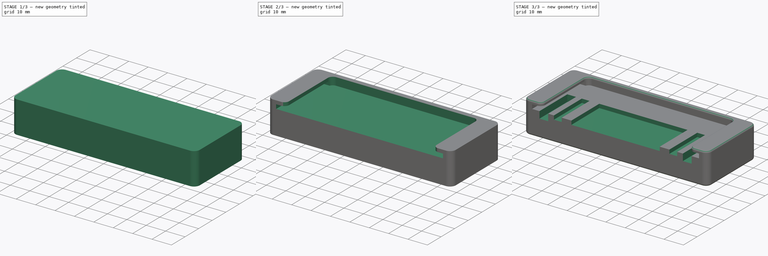
[diagram: build sequence overview — one tinted view per stage of 3, left to right]
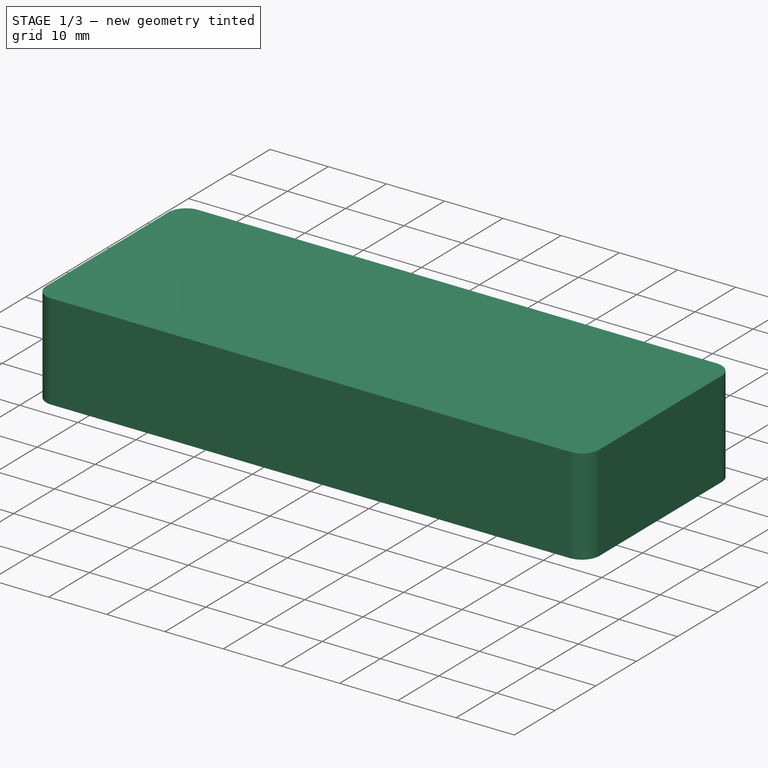
[diagram: stage 1 of 3 — iso view after this stage's code; geometry added in this stage tinted green]
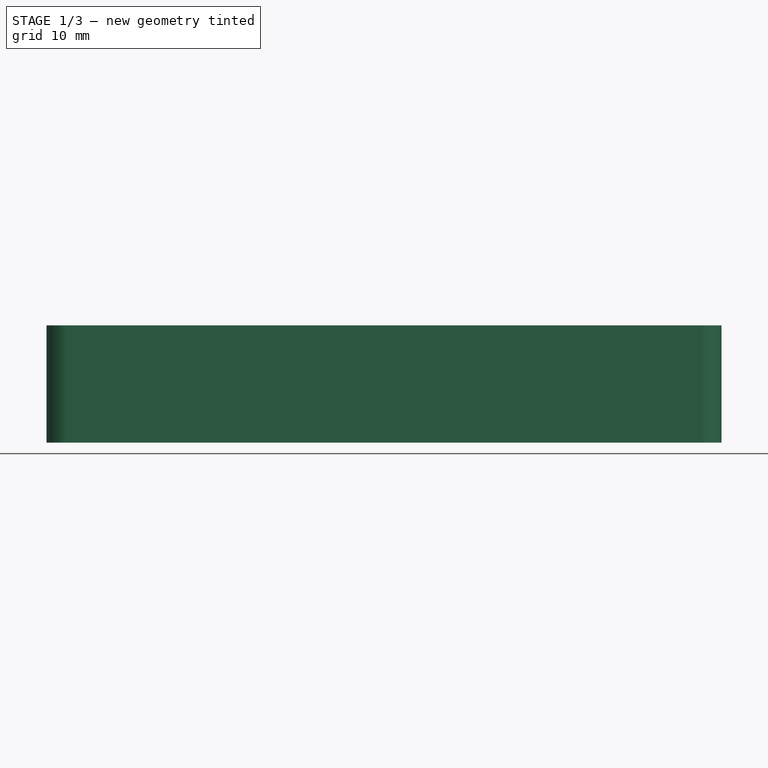
[diagram: stage 1 of 3 — front view after this stage's code; geometry added in this stage tinted green]
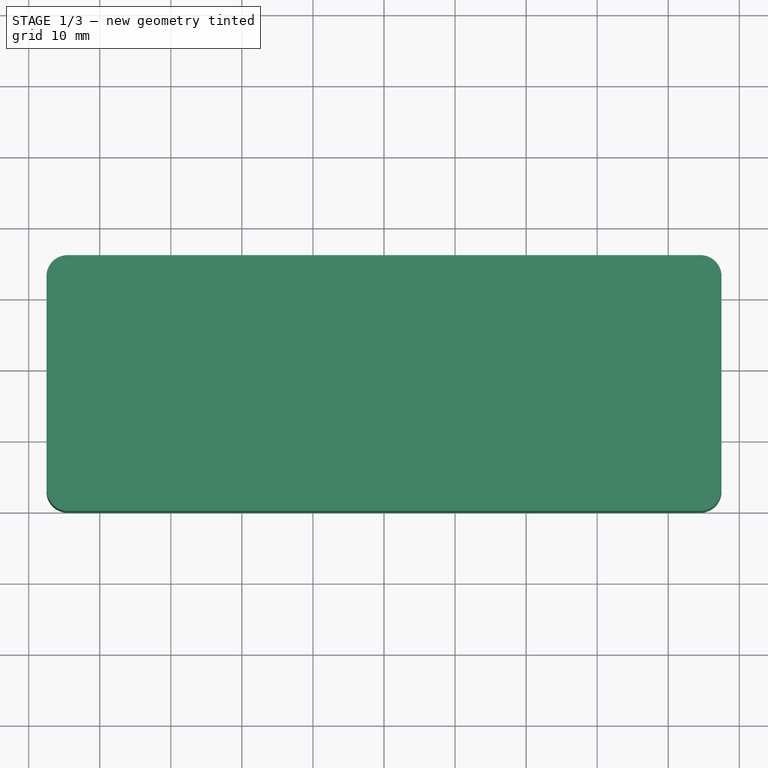
[diagram: stage 1 of 3 — top view after this stage's code; geometry added in this stage tinted green]
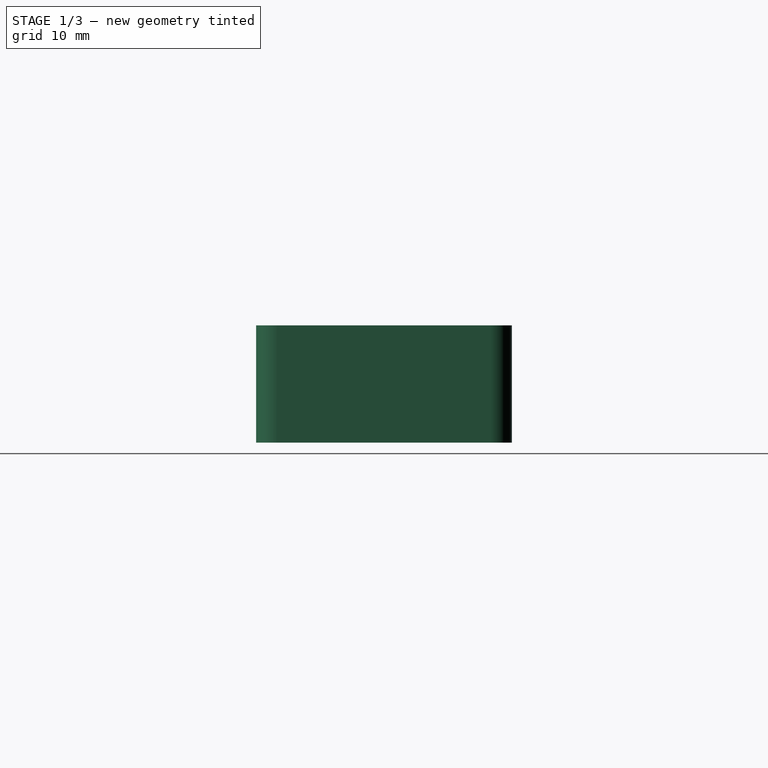
[diagram: stage 1 of 3 — right view after this stage's code; geometry added in this stage tinted green]
FCSTD DOCUMENT  (FreeCAD 1.0R38806 (Git))
Label: VertiCart Base Support
License: Creative Commons Attribution 4.0
LicenseURL: https://creativecommons.org/licenses/by/4.0/
objects: Sketcher::SketchObject×5, PartDesign::Pocket×4, PartDesign::Pad×1, PartDesign::Fillet×1, PartDesign::Body×1
note: 29 computed .brp shape members not serialized (recipe doc carries the construction recipe); baked Part::Feature solids carry a one-line shape summary decoded from their .brp

FEATURE [Sketcher::SketchObject] Sketch
  ArcFitTolerance = 1e-06
  AttachmentSupport = -> [XY_Plane]
  FullyConstrained = true
  MakeInternals = false
  MapMode = 5
  sketch-geometry (10):
    g0: LineSegment StartX=-47.5 StartY=33 StartZ=0 EndX=-47.5 EndY=3 EndZ=0
    g1: LineSegment StartX=-44.5 StartY=0 StartZ=0 EndX=44.5 EndY=0 EndZ=0
    g2: LineSegment StartX=47.5 StartY=3 StartZ=0 EndX=47.5 EndY=33 EndZ=0
    g3: LineSegment StartX=44.5 StartY=36 StartZ=0 EndX=-44.5 EndY=36 EndZ=0
    g4: ArcOfCircle CenterX=-44.5 CenterY=33 CenterZ=0 NormalX=0 NormalY=0 NormalZ=1 AngleXU=0 Radius=3 StartAngle=1.5708 EndAngle=3.14159
    g5: ArcOfCircle CenterX=-44.5 CenterY=3 CenterZ=0 NormalX=0 NormalY=0 NormalZ=1 AngleXU=0 Radius=3 StartAngle=3.14159 EndAngle=4.71239
    g6: ArcOfCircle CenterX=44.5 CenterY=3 CenterZ=0 NormalX=0 NormalY=0 NormalZ=1 AngleXU=0 Radius=3 StartAngle=4.71239 EndAngle=6.28319
    g7: ArcOfCircle CenterX=44.5 CenterY=33 CenterZ=0 NormalX=0 NormalY=0 NormalZ=1 AngleXU=0 Radius=3 StartAngle=-2.7e-15 EndAngle=1.5708
    g8: GeomPoint [constr] X=-47.5 Y=36 Z=0
    g9: GeomPoint [constr] X=47.5 Y=0 Z=0
  constraints (23):
    c: Tangent(g0,g4) = -1.5708
    c: Tangent(g0,g5) = -1.5708
    c: Tangent(g1,g5) = -1.5708
    c: Tangent(g1,g6) = -1.5708
    c: Tangent(g2,g6) = -1.5708
    c: Tangent(g2,g7) = -1.5708
    c: Tangent(g3,g7) = -1.5708
    c: Tangent(g3,g4) = -1.5708
    c: Vertical(g0)
    c: Vertical(g2)
    c: Horizontal(g1)
    c: Horizontal(g3)
    c: Equal(g4,g5)
    c: Equal(g5,g6)
    c: Equal(g6,g7)
    c: PointOnObject(g8,g0)
    c: PointOnObject(g8,g3)
    c: PointOnObject(g9,g1)
    c: PointOnObject(g9,g2)
    c: Distance(g0,g2) = 95
    c: Distance(g1,g3) = 36
    c: Radius(g5) = 3
    c: Symmetric(g1,g1,g-1)
FEATURE [PartDesign::Pad] Pad
  Direction = (0,0,1)
  Length = 16.5
  Length2 = 10
  Profile = -> Sketch
  ReferenceAxis = -> Sketch [N_Axis]
  Suppressed = false
  Type = 0
FEATURE [Sketcher::SketchObject] Sketch001
  ArcFitTolerance = 1e-06
  AttachmentSupport = -> [Pad]
  ExternalGeometry = -> [Pad]
  FullyConstrained = true
  MakeInternals = false
  MapMode = 5
  Placement = pos=(0,0,0) rot=(1,0,0;3.14159rad)
  sketch-geometry (2):
    g0: Circle CenterX=-39.5 CenterY=-28 CenterZ=0 NormalX=0 NormalY=0 NormalZ=1 AngleXU=0 Radius=6.5
    g1: Circle CenterX=39.5 CenterY=-28 CenterZ=0 NormalX=0 NormalY=0 NormalZ=1 AngleXU=0 Radius=6.5
  constraints (5):
    c: Diameter(g0) = 13
    c: Equal(g1,g0)
    c: Symmetric(g0,g1,g-2)
    c: DistanceX(g-4,g0) = 8
    c: DistanceY(g-3,g0) = 8
FEATURE [PartDesign::Pocket] Pocket
  BaseFeature = -> Pad
  Direction = (0,0,1)
  Length = 1.5
  Length2 = 5
  Profile = -> Sketch001
  ReferenceAxis = -> Sketch001 [N_Axis]
  Suppressed = false
  Type = 0
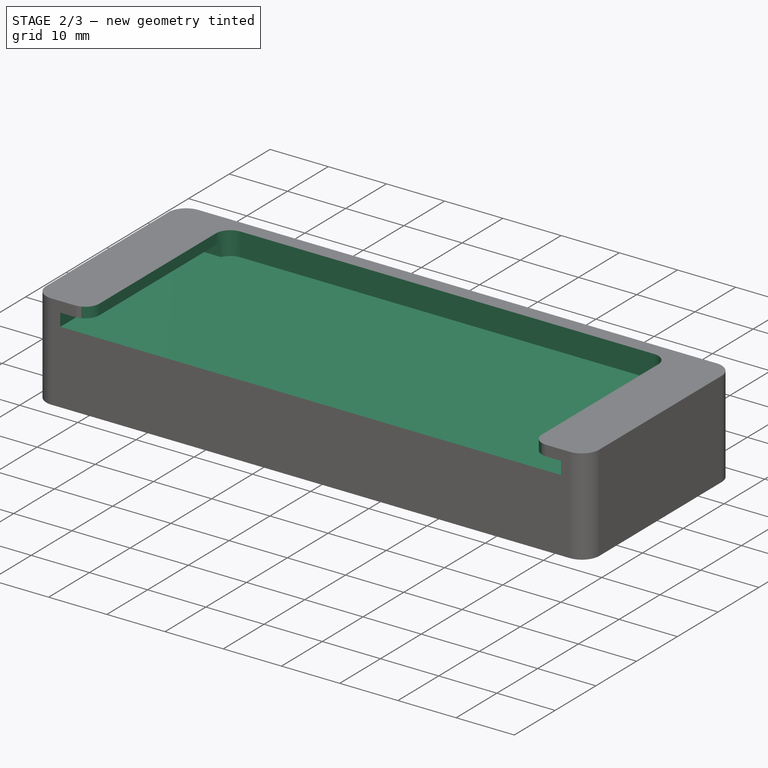
[diagram: stage 2 of 3 — iso view after this stage's code; geometry added in this stage tinted green]
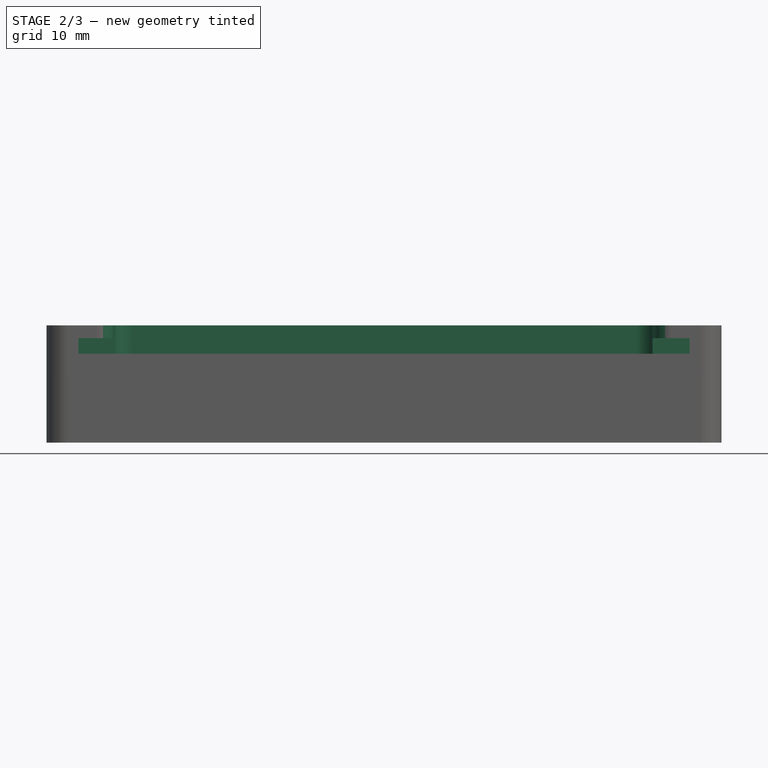
[diagram: stage 2 of 3 — front view after this stage's code; geometry added in this stage tinted green]
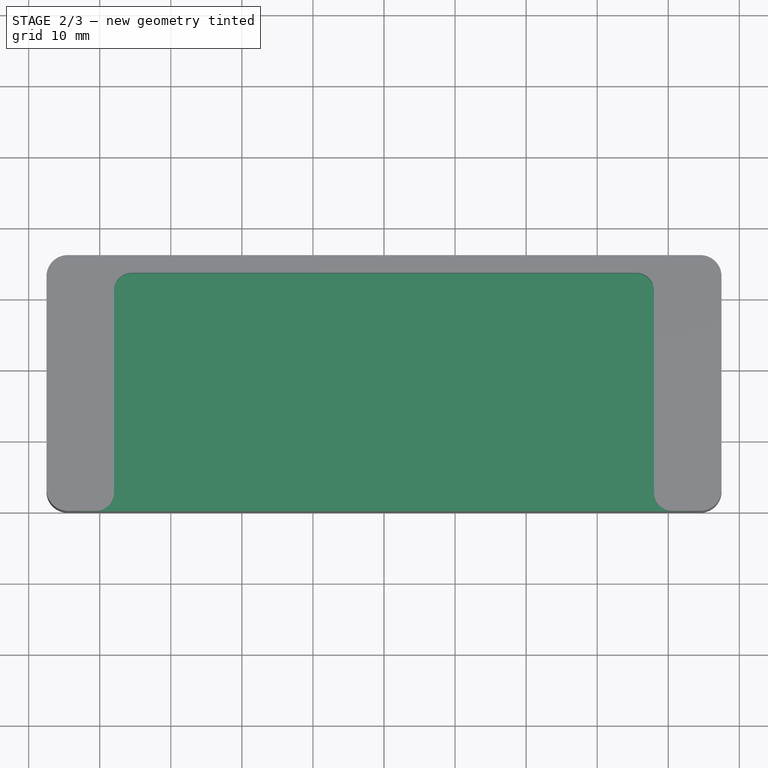
[diagram: stage 2 of 3 — top view after this stage's code; geometry added in this stage tinted green]
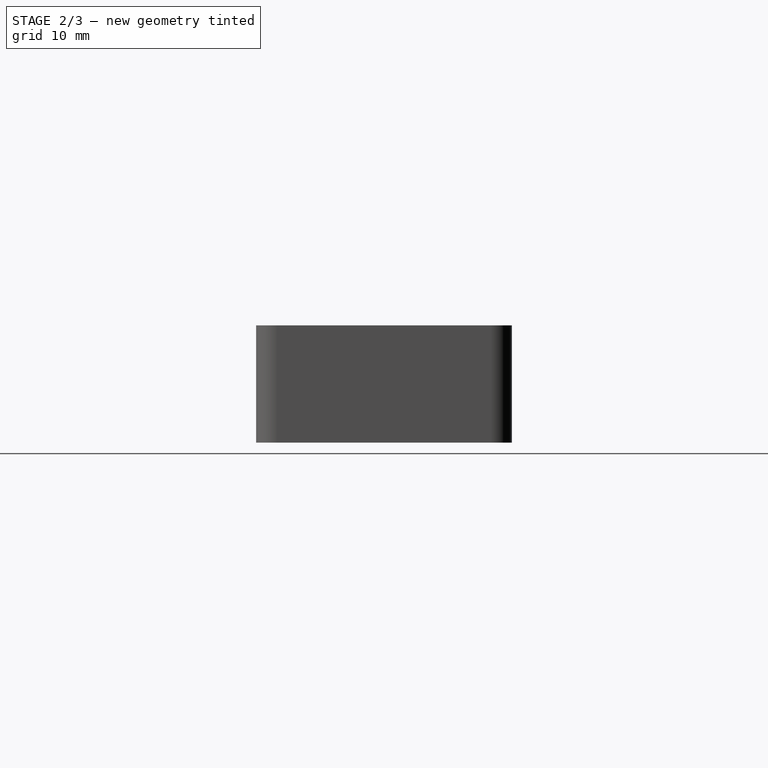
[diagram: stage 2 of 3 — right view after this stage's code; geometry added in this stage tinted green]
FEATURE [Sketcher::SketchObject] Sketch002
  ArcFitTolerance = 1e-06
  AttachmentSupport = -> [Pocket]
  FullyConstrained = true
  MakeInternals = false
  MapMode = 5
  Placement = pos=(0,0,0) rot=(1,0,0;1.5708rad)
  sketch-geometry (4):
    g0: LineSegment StartX=-43 StartY=14.7 StartZ=0 EndX=-43 EndY=12.5 EndZ=0
    g1: LineSegment StartX=-43 StartY=12.5 StartZ=0 EndX=43 EndY=12.5 EndZ=0
    g2: LineSegment StartX=43 StartY=12.5 StartZ=0 EndX=43 EndY=14.7 EndZ=0
    g3: LineSegment StartX=43 StartY=14.7 StartZ=0 EndX=-43 EndY=14.7 EndZ=0
  constraints (11):
    c: Coincident(g0,g1)
    c: Coincident(g1,g2)
    c: Coincident(g2,g3)
    c: Coincident(g3,g0)
    c: Vertical(g0)
    c: Vertical(g2)
    c: Horizontal(g3)
    c: Distance(g0,g2) = 86
    c: Distance(g1,g3) = 2.2
    c: Symmetric(g0,g1,g-2)
    c: DistanceY(g-1,g1) = 12.5
FEATURE [PartDesign::Pocket] Pocket001
  BaseFeature = -> Pocket
  Direction = (0,1,-2e-16)
  Length = 32
  Length2 = 5
  Profile = -> Sketch002
  ReferenceAxis = -> Sketch002 [N_Axis]
  Suppressed = false
  Type = 0
FEATURE [Sketcher::SketchObject] Sketch003
  ArcFitTolerance = 1e-06
  AttachmentSupport = -> [Pocket001]
  FullyConstrained = true
  MakeInternals = false
  MapMode = 5
  Placement = pos=(0,0,16.5) rot=(0,0,1;0rad)
  sketch-geometry (10):
    g0: LineSegment StartX=-40.5 StartY=0 StartZ=0 EndX=40.5 EndY=0 EndZ=0
    g1: LineSegment StartX=35.5 StartY=33.5 StartZ=0 EndX=-35.5 EndY=33.5 EndZ=0
    g2: ArcOfCircle CenterX=-35.5 CenterY=31 CenterZ=0 NormalX=0 NormalY=0 NormalZ=1 AngleXU=0 Radius=2.5 StartAngle=1.5708 EndAngle=3.14159
    g3: GeomPoint [constr] X=-38 Y=33.5 Z=0
    g4: ArcOfCircle CenterX=35.5 CenterY=31 CenterZ=0 NormalX=0 NormalY=0 NormalZ=1 AngleXU=0 Radius=2.5 StartAngle=2e-16 EndAngle=1.5708
    g5: GeomPoint [constr] X=38 Y=33.5 Z=0
    g6: LineSegment StartX=-38 StartY=31 StartZ=0 EndX=-38 EndY=2.5 EndZ=0
    g7: LineSegment StartX=38 StartY=2.5 StartZ=0 EndX=38 EndY=31 EndZ=0
    g8: ArcOfCircle CenterX=-40.5 CenterY=2.5 CenterZ=0 NormalX=0 NormalY=0 NormalZ=1 AngleXU=0 Radius=2.5 StartAngle=4.71239 EndAngle=6.28319
    g9: ArcOfCircle CenterX=40.5 CenterY=2.5 CenterZ=0 NormalX=0 NormalY=0 NormalZ=1 AngleXU=0 Radius=2.5 StartAngle=3.14159 EndAngle=4.71239
  constraints (28):
    c: Horizontal(g1)
    c: PointOnObject(g0,g-1)
    c: Symmetric(g0,g0,g-2)
    c: PointOnObject(g3,g1)
    c: Coincident(g6,g2) = -1.5708
    c: Tangent(g1,g2) = -1.5708
    c: PointOnObject(g5,g1)
    c: Tangent(g1,g4) = -1.5708
    c: Coincident(g7,g4) = -1.5708
    c: Equal(g2,g4)
    c: Radius(g4) = 2.5
    c: DistanceX(g6,g7) = 76
    c: Vertical(g6)
    c: PointOnObject(g3,g6)
    c: Vertical(g7)
    c: DistanceY(g0,g3) = 33.5
    c: Symmetric(g6,g7,g-2)
    c: Coincident(g8,g0)
    c: Coincident(g8,g6)
    c: Coincident(g9,g0)
    c: Coincident(g9,g7)
    c: Horizontal(g7,g9)
    c: Horizontal(g8,g6)
    c: Vertical(g9,g0)
    c: Equal(g2,g8)
    c: Horizontal(g4,g4)
    c: Horizontal(g2,g2)
    c: PointOnObject(g5,g7)
FEATURE [PartDesign::Pocket] Pocket002
  BaseFeature = -> Pocket001
  Direction = (0,0,-1)
  Length = 0
  Length2 = 5
  Profile = -> Sketch003
  ReferenceAxis = -> Sketch003 [N_Axis]
  Refine = true
  Suppressed = false
  Type = 3
  UpToFace = -> Pocket001 [Face15]
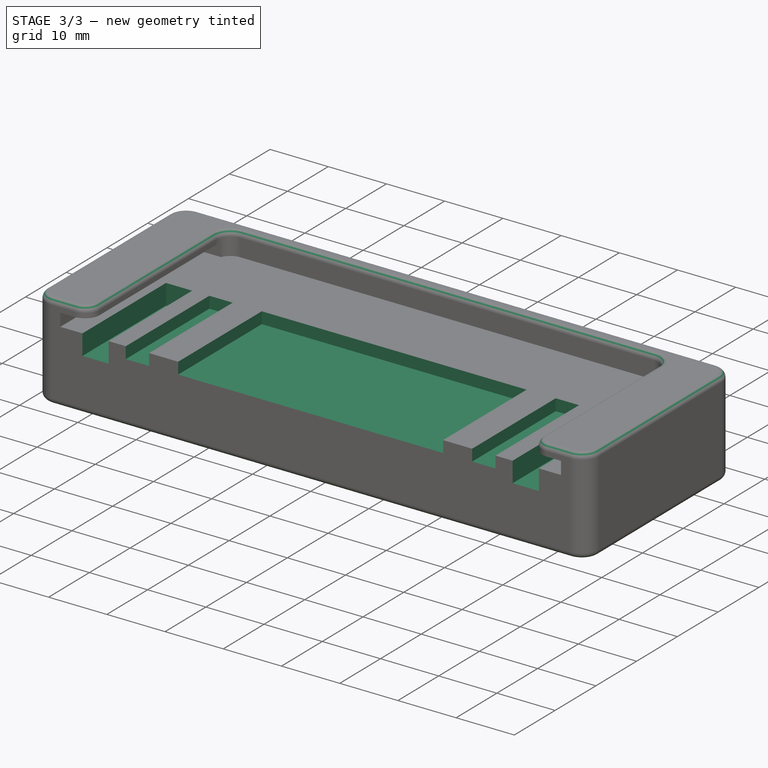
[diagram: stage 3 of 3 — iso view after this stage's code; geometry added in this stage tinted green]
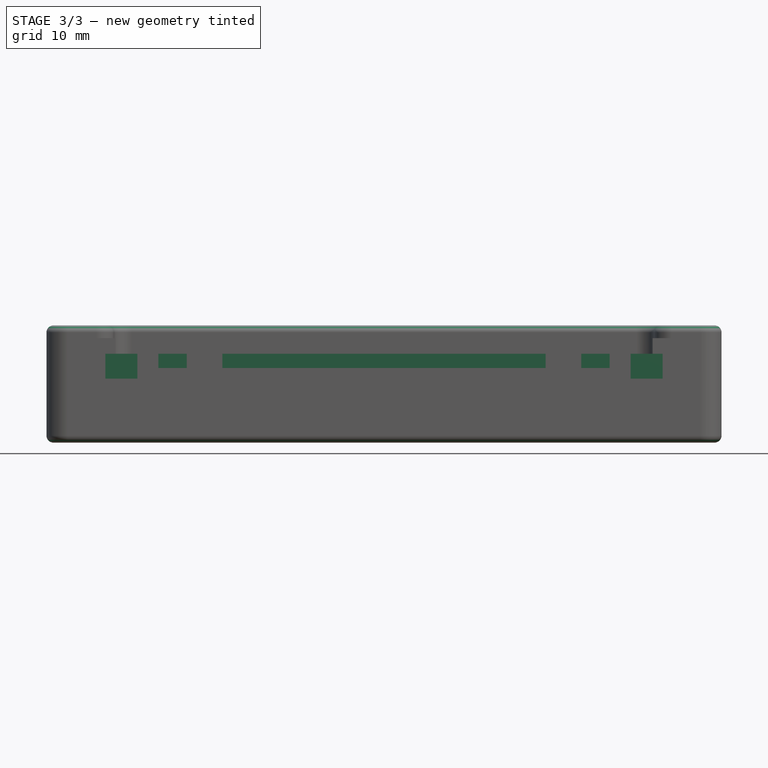
[diagram: stage 3 of 3 — front view after this stage's code; geometry added in this stage tinted green]
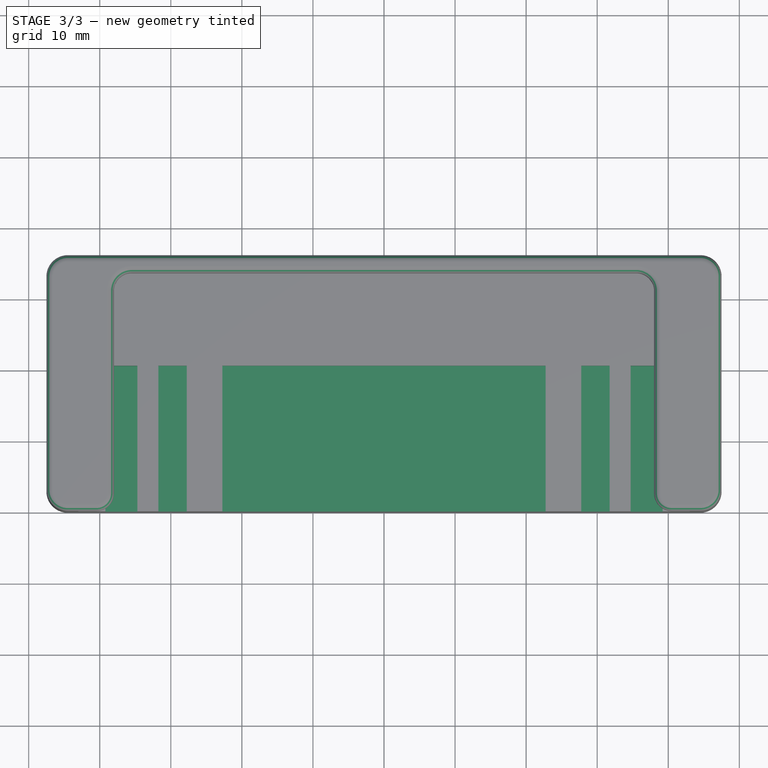
[diagram: stage 3 of 3 — top view after this stage's code; geometry added in this stage tinted green]
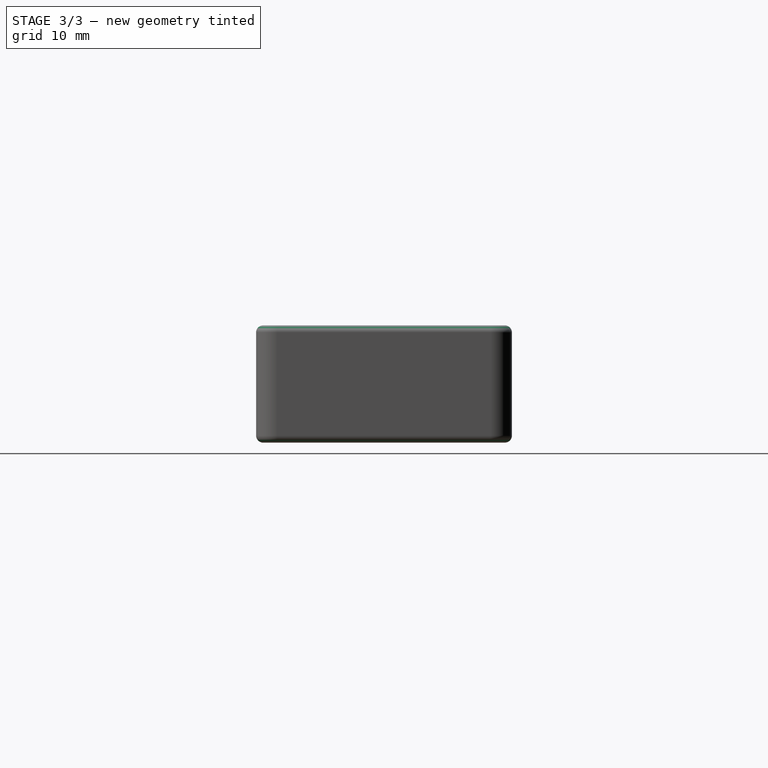
[diagram: stage 3 of 3 — right view after this stage's code; geometry added in this stage tinted green]
FEATURE [Sketcher::SketchObject] Sketch004
  ArcFitTolerance = 1e-06
  AttachmentSupport = -> [Pocket002]
  ExternalGeometry = -> [Pocket002]
  FullyConstrained = true
  MakeInternals = false
  MapMode = 5
  Placement = pos=(0,0,0) rot=(1,0,0;1.5708rad)
  sketch-geometry (20):
    g0: LineSegment StartX=-31.75 StartY=12.5 StartZ=0 EndX=-31.75 EndY=10.5 EndZ=0
    g1: LineSegment StartX=31.75 StartY=10.5 StartZ=0 EndX=31.75 EndY=12.5 EndZ=0
    g2: LineSegment StartX=-39.2 StartY=12.5 StartZ=0 EndX=-39.2 EndY=9 EndZ=0
    g3: LineSegment StartX=-39.2 StartY=9 StartZ=0 EndX=-34.7 EndY=9 EndZ=0
    g4: LineSegment StartX=-34.7 StartY=9 StartZ=0 EndX=-34.7 EndY=12.5 EndZ=0
    g5: LineSegment StartX=-34.7 StartY=12.5 StartZ=0 EndX=-39.2 EndY=12.5 EndZ=0
    g6: LineSegment StartX=34.7 StartY=12.5 StartZ=0 EndX=34.7 EndY=9 EndZ=0
    g7: LineSegment StartX=34.7 StartY=9 StartZ=0 EndX=39.2 EndY=9 EndZ=0
    g8: LineSegment StartX=39.2 StartY=9 StartZ=0 EndX=39.2 EndY=12.5 EndZ=0
    g9: LineSegment StartX=39.2 StartY=12.5 StartZ=0 EndX=34.7 EndY=12.5 EndZ=0
    g10: LineSegment StartX=-31.75 StartY=10.5 StartZ=0 EndX=-27.75 EndY=10.5 EndZ=0
    g11: LineSegment StartX=-27.75 StartY=10.5 StartZ=0 EndX=-27.75 EndY=12.5 EndZ=0
    g12: LineSegment StartX=-27.75 StartY=12.5 StartZ=0 EndX=-31.75 EndY=12.5 EndZ=0
    g13: LineSegment StartX=31.75 StartY=10.5 StartZ=0 EndX=27.75 EndY=10.5 EndZ=0
    g14: LineSegment StartX=27.75 StartY=10.5 StartZ=0 EndX=27.75 EndY=12.5 EndZ=0
    g15: LineSegment StartX=27.75 StartY=12.5 StartZ=0 EndX=31.75 EndY=12.5 EndZ=0
    g16: LineSegment StartX=-22.75 StartY=12.5 StartZ=0 EndX=-22.75 EndY=10.5 EndZ=0
    g17: LineSegment StartX=-22.75 StartY=10.5 StartZ=0 EndX=22.75 EndY=10.5 EndZ=0
    g18: LineSegment StartX=22.75 StartY=10.5 StartZ=0 EndX=22.75 EndY=12.5 EndZ=0
    g19: LineSegment StartX=22.75 StartY=12.5 StartZ=0 EndX=-22.75 EndY=12.5 EndZ=0
  constraints (57):
    c: Vertical(g0)
    c: Vertical(g1)
    c: Distance(g0,g1) = 63.5
    c: Distance(g0,g0) = 2
    c: PointOnObject(g0,g-3)
    c: Symmetric(g0,g1,g-2)
    c: Coincident(g2,g3)
    c: Coincident(g3,g4)
    c: Coincident(g4,g5)
    c: Coincident(g5,g2)
    c: Vertical(g2)
    c: Vertical(g4)
    c: Horizontal(g3)
    c: Horizontal(g5)
    c: Distance(g2,g4) = 4.5
    c: Distance(g3,g5) = 3.5
    c: PointOnObject(g2,g-3)
    c: Coincident(g6,g7)
    c: Coincident(g7,g8)
    c: Coincident(g8,g9)
    c: Coincident(g9,g6)
    c: Vertical(g6)
    c: Vertical(g8)
    c: Horizontal(g7)
    c: Horizontal(g9)
    c: PointOnObject(g6,g-3)
    c: Equal(g9,g5)
    c: Symmetric(g3,g6,g-2)
    c: DistanceX(g3,g6) = 69.4
    c: Horizontal(g0,g1)
    c: Coincident(g0,g10)
    c: Horizontal(g10)
    c: Coincident(g10,g11)
    c: PointOnObject(g11,g-3)
    c: Vertical(g11)
    c: Coincident(g11,g12)
    c: Coincident(g12,g0)
    c: DistanceX(g12,g12) = 4
    c: Coincident(g1,g13)
    c: Horizontal(g13)
    c: Coincident(g13,g14)
    c: PointOnObject(g14,g-3)
    c: Vertical(g14)
    c: Coincident(g14,g15)
    c: Coincident(g15,g1)
    c: Equal(g15,g12)
    c: Coincident(g16,g17)
    c: Coincident(g17,g18)
    c: Coincident(g18,g19)
    c: Coincident(g19,g16)
    c: Vertical(g16)
    c: Vertical(g18)
    c: Horizontal(g19)
    c: PointOnObject(g16,g-3)
    c: Horizontal(g10,g16)
    c: Symmetric(g16,g17,g-2)
    c: DistanceX(g11,g16) = 5
FEATURE [PartDesign::Pocket] Pocket003
  BaseFeature = -> Pocket002
  Direction = (0,1,-2e-16)
  Length = 20.5
  Length2 = 5
  Profile = -> Sketch004
  ReferenceAxis = -> Sketch004 [N_Axis]
  Suppressed = false
  Type = 0
FEATURE [PartDesign::Fillet] Fillet
  Base = -> Pocket003 [Edge12,Edge18]
  BaseFeature = -> Pocket003
  Radius = 1
  SupportTransform = false
  Suppressed = false
  UseAllEdges = false
FEATURE [PartDesign::Body] Body
  AllowCompound = false
  Group = -> [Sketch,Pad,Sketch001,Pocket,Sketch002,Pocket001,Sketch003,Pocket002,Sketch004,Pocket003,Fillet]
  Origin = -> Origin
  Tip = -> Fillet
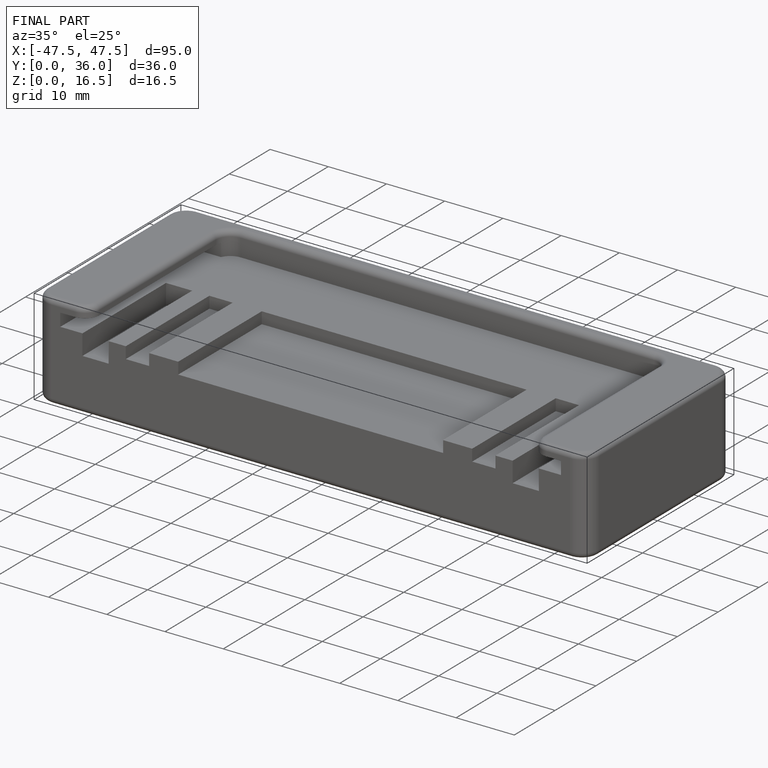
[diagram: finished part — iso view with bounding-box wireframe]
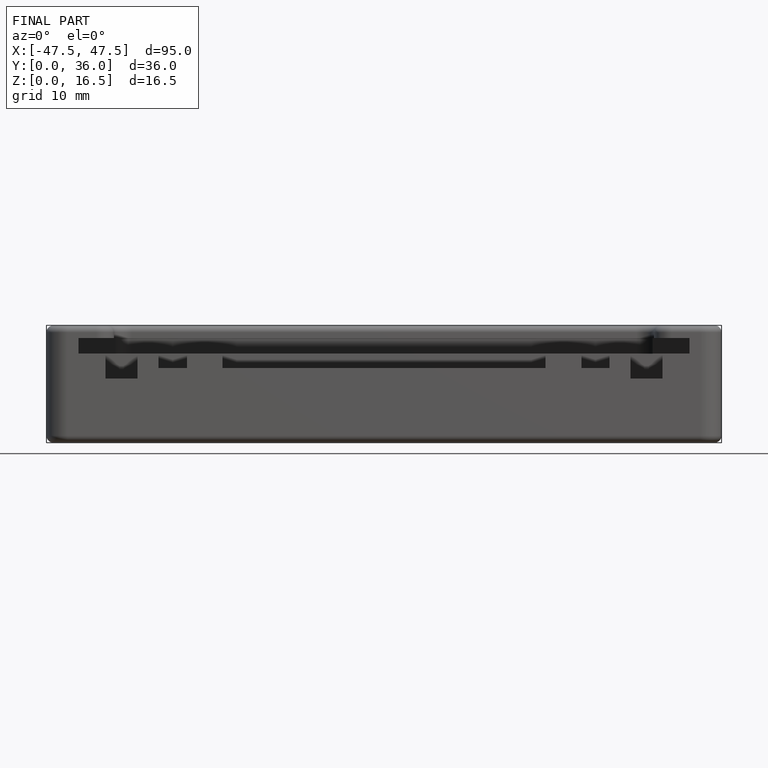
[diagram: finished part — front view with bounding-box wireframe]
